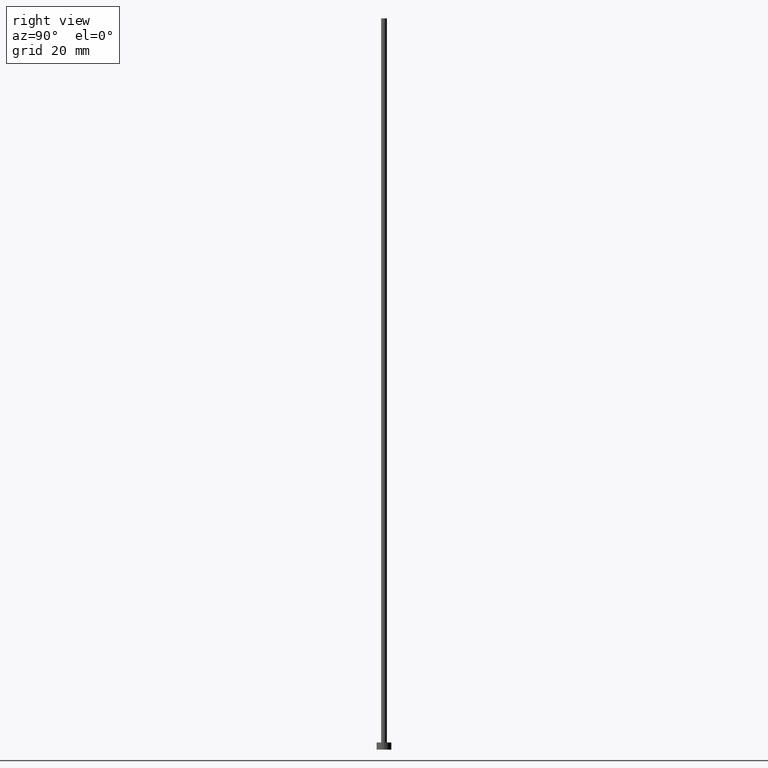
[diagram: clean part render]
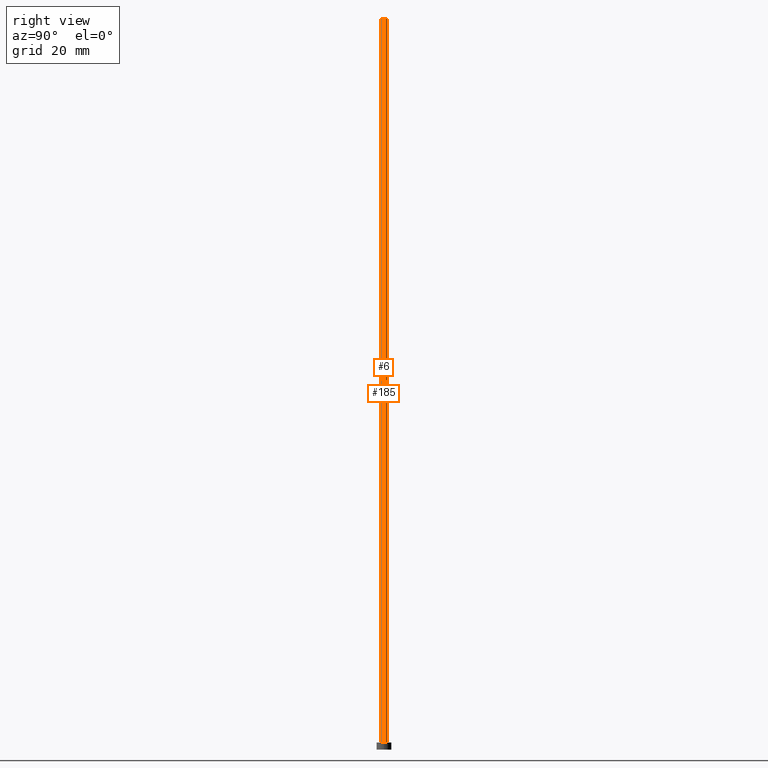
[diagram: same view with one multi-face feature highlighted, each face labeled with its STEP entity id]
A machine part, right view. The highlighted faces form ONE feature: a constant-radius fillet chain: 2 tangent blend faces with common blend radius 0.5 mm. The faces share edges in the B-rep.
Their STEP definitions:
[1] entity #6 (Cylinder):
#3 = EDGE_LOOP ( 'NONE', ( #116, #196, #43, #94 ) ) ;
#6 = ADVANCED_FACE ( 'NONE', ( #133 ), #218, .T. ) ;
#20 = CIRCLE ( 'NONE', #224, 0.5000000000000000000 ) ;
#22 = VERTEX_POINT ( 'NONE', #64 ) ;
#25 = DIRECTION ( 'NONE',  ( 0.000000000000000000, 0.000000000000000000, 1.000000000000000000 ) ) ;
#42 = EDGE_CURVE ( 'NONE', #240, #154, #211, .T. ) ;
#43 = ORIENTED_EDGE ( 'NONE', *, *, #157, .T. ) ;
#53 = EDGE_CURVE ( 'NONE', #22, #155, #20, .T. ) ;
#64 = CARTESIAN_POINT ( 'NONE',  ( -0.5000000000000000000, 0.000000000000000000, 1.199999999999999956 ) ) ;
#65 = CARTESIAN_POINT ( 'NONE',  ( 0.5000000000000000000, 6.123233995736766036E-17, 1.199999999999999956 ) ) ;
#66 = CARTESIAN_POINT ( 'NONE',  ( 0.000000000000000000, 0.000000000000000000, 1.199999999999999956 ) ) ;
#73 = AXIS2_PLACEMENT_3D ( 'NONE', #248, #138, #160 ) ;
#88 = CARTESIAN_POINT ( 'NONE',  ( -0.5000000000000000000, 0.000000000000000000, 124.0000000000000000 ) ) ;
#94 = ORIENTED_EDGE ( 'NONE', *, *, #53, .T. ) ;
#101 = CARTESIAN_POINT ( 'NONE',  ( 0.5000000000000000000, 6.123233995736766036E-17, 124.0000000000000000 ) ) ;
#116 = ORIENTED_EDGE ( 'NONE', *, *, #137, .F. ) ;
#133 = FACE_OUTER_BOUND ( 'NONE', #3, .T. ) ;
#134 = VECTOR ( 'NONE', #163, 1000.000000000000000 ) ;
#135 = CARTESIAN_POINT ( 'NONE',  ( 0.000000000000000000, 0.000000000000000000, 124.0000000000000000 ) ) ;
#137 = EDGE_CURVE ( 'NONE', #154, #155, #162, .T. ) ;
#138 = DIRECTION ( 'NONE',  ( 0.000000000000000000, 0.000000000000000000, 1.000000000000000000 ) ) ;
#141 = LINE ( 'NONE', #184, #182 ) ;
#144 = AXIS2_PLACEMENT_3D ( 'NONE', #135, #221, #249 ) ;
#154 = VERTEX_POINT ( 'NONE', #101 ) ;
#155 = VERTEX_POINT ( 'NONE', #65 ) ;
#157 = EDGE_CURVE ( 'NONE', #240, #22, #141, .T. ) ;
#160 = DIRECTION ( 'NONE',  ( 1.000000000000000000, 0.000000000000000000, 0.000000000000000000 ) ) ;
#161 = CARTESIAN_POINT ( 'NONE',  ( 0.5000000000000000000, 6.123233995736766036E-17, 124.0000000000000000 ) ) ;
#162 = LINE ( 'NONE', #161, #134 ) ;
#163 = DIRECTION ( 'NONE',  ( -0.000000000000000000, -0.000000000000000000, -1.000000000000000000 ) ) ;
#182 = VECTOR ( 'NONE', #228, 1000.000000000000000 ) ;
#184 = CARTESIAN_POINT ( 'NONE',  ( -0.5000000000000000000, 0.000000000000000000, 124.0000000000000000 ) ) ;
#196 = ORIENTED_EDGE ( 'NONE', *, *, #42, .F. ) ;
#211 = CIRCLE ( 'NONE', #73, 0.5000000000000000000 ) ;
#218 = CYLINDRICAL_SURFACE ( 'NONE', #144, 0.5000000000000000000 ) ;
#221 = DIRECTION ( 'NONE',  ( -0.000000000000000000, -0.000000000000000000, -1.000000000000000000 ) ) ;
#224 = AXIS2_PLACEMENT_3D ( 'NONE', #66, #25, #227 ) ;
#227 = DIRECTION ( 'NONE',  ( 1.000000000000000000, 0.000000000000000000, 0.000000000000000000 ) ) ;
#228 = DIRECTION ( 'NONE',  ( -0.000000000000000000, -0.000000000000000000, -1.000000000000000000 ) ) ;
#240 = VERTEX_POINT ( 'NONE', #88 ) ;
#248 = CARTESIAN_POINT ( 'NONE',  ( 0.000000000000000000, 0.000000000000000000, 124.0000000000000000 ) ) ;
#249 = DIRECTION ( 'NONE',  ( -1.000000000000000000, 0.000000000000000000, 0.000000000000000000 ) ) ;
[2] entity #185 (Cylinder):
#5 = EDGE_LOOP ( 'NONE', ( #78, #132, #115, #60 ) ) ;
#8 = DIRECTION ( 'NONE',  ( 0.000000000000000000, 0.000000000000000000, 1.000000000000000000 ) ) ;
#10 = EDGE_CURVE ( 'NONE', #154, #240, #245, .T. ) ;
#11 = FACE_OUTER_BOUND ( 'NONE', #5, .T. ) ;
#13 = AXIS2_PLACEMENT_3D ( 'NONE', #205, #51, #207 ) ;
#22 = VERTEX_POINT ( 'NONE', #64 ) ;
#51 = DIRECTION ( 'NONE',  ( -0.000000000000000000, -0.000000000000000000, -1.000000000000000000 ) ) ;
#60 = ORIENTED_EDGE ( 'NONE', *, *, #157, .F. ) ;
#64 = CARTESIAN_POINT ( 'NONE',  ( -0.5000000000000000000, 0.000000000000000000, 1.199999999999999956 ) ) ;
#65 = CARTESIAN_POINT ( 'NONE',  ( 0.5000000000000000000, 6.123233995736766036E-17, 1.199999999999999956 ) ) ;
#78 = ORIENTED_EDGE ( 'NONE', *, *, #10, .F. ) ;
#79 = EDGE_CURVE ( 'NONE', #155, #22, #197, .T. ) ;
#81 = AXIS2_PLACEMENT_3D ( 'NONE', #120, #8, #124 ) ;
#88 = CARTESIAN_POINT ( 'NONE',  ( -0.5000000000000000000, 0.000000000000000000, 124.0000000000000000 ) ) ;
#101 = CARTESIAN_POINT ( 'NONE',  ( 0.5000000000000000000, 6.123233995736766036E-17, 124.0000000000000000 ) ) ;
#102 = CARTESIAN_POINT ( 'NONE',  ( 0.000000000000000000, 0.000000000000000000, 124.0000000000000000 ) ) ;
#115 = ORIENTED_EDGE ( 'NONE', *, *, #79, .T. ) ;
#120 = CARTESIAN_POINT ( 'NONE',  ( 0.000000000000000000, 0.000000000000000000, 1.199999999999999956 ) ) ;
#124 = DIRECTION ( 'NONE',  ( 1.000000000000000000, 0.000000000000000000, 0.000000000000000000 ) ) ;
#132 = ORIENTED_EDGE ( 'NONE', *, *, #137, .T. ) ;
#134 = VECTOR ( 'NONE', #163, 1000.000000000000000 ) ;
#137 = EDGE_CURVE ( 'NONE', #154, #155, #162, .T. ) ;
#141 = LINE ( 'NONE', #184, #182 ) ;
#154 = VERTEX_POINT ( 'NONE', #101 ) ;
#155 = VERTEX_POINT ( 'NONE', #65 ) ;
#157 = EDGE_CURVE ( 'NONE', #240, #22, #141, .T. ) ;
#161 = CARTESIAN_POINT ( 'NONE',  ( 0.5000000000000000000, 6.123233995736766036E-17, 124.0000000000000000 ) ) ;
#162 = LINE ( 'NONE', #161, #134 ) ;
#163 = DIRECTION ( 'NONE',  ( -0.000000000000000000, -0.000000000000000000, -1.000000000000000000 ) ) ;
#181 = DIRECTION ( 'NONE',  ( 0.000000000000000000, 0.000000000000000000, 1.000000000000000000 ) ) ;
#182 = VECTOR ( 'NONE', #228, 1000.000000000000000 ) ;
#184 = CARTESIAN_POINT ( 'NONE',  ( -0.5000000000000000000, 0.000000000000000000, 124.0000000000000000 ) ) ;
#185 = ADVANCED_FACE ( 'NONE', ( #11 ), #230, .T. ) ;
#187 = AXIS2_PLACEMENT_3D ( 'NONE', #102, #181, #209 ) ;
#197 = CIRCLE ( 'NONE', #81, 0.5000000000000000000 ) ;
#205 = CARTESIAN_POINT ( 'NONE',  ( 0.000000000000000000, 0.000000000000000000, 124.0000000000000000 ) ) ;
#207 = DIRECTION ( 'NONE',  ( -1.000000000000000000, 0.000000000000000000, 0.000000000000000000 ) ) ;
#209 = DIRECTION ( 'NONE',  ( 1.000000000000000000, 0.000000000000000000, 0.000000000000000000 ) ) ;
#228 = DIRECTION ( 'NONE',  ( -0.000000000000000000, -0.000000000000000000, -1.000000000000000000 ) ) ;
#230 = CYLINDRICAL_SURFACE ( 'NONE', #13, 0.5000000000000000000 ) ;
#240 = VERTEX_POINT ( 'NONE', #88 ) ;
#245 = CIRCLE ( 'NONE', #187, 0.5000000000000000000 ) ;